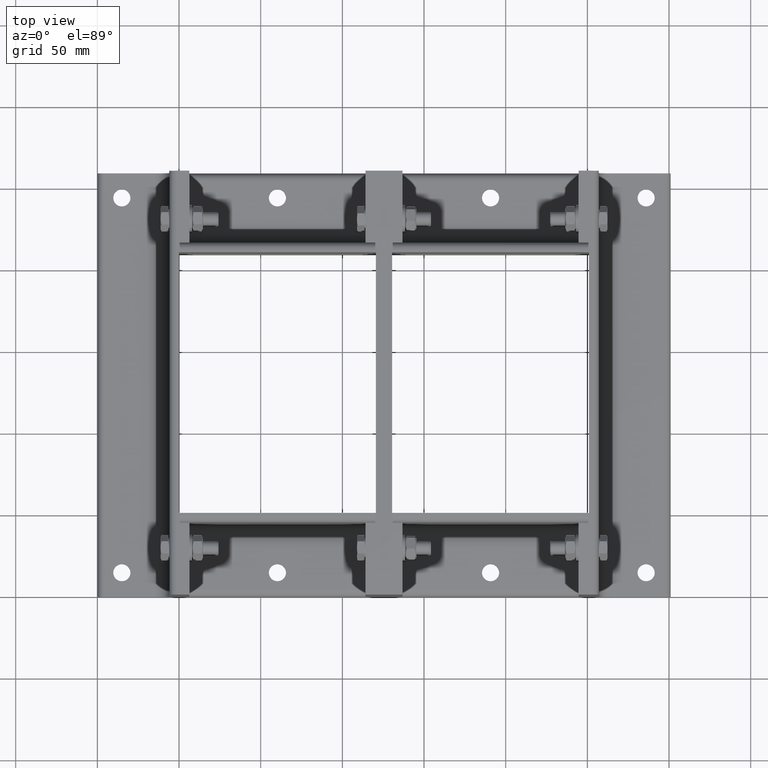
[diagram: clean part render]
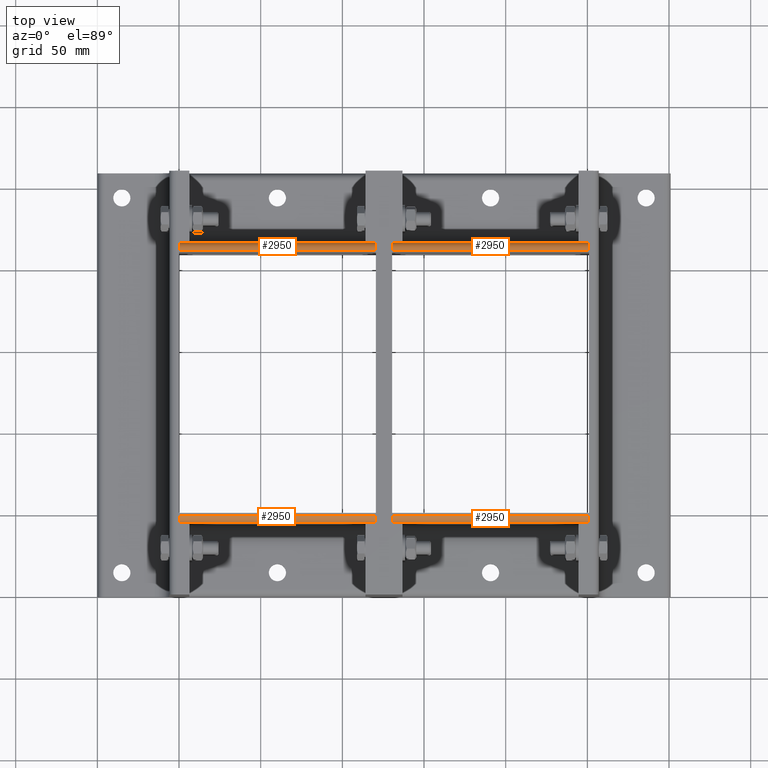
[diagram: same view with one multi-face feature highlighted, each face labeled with its STEP entity id]
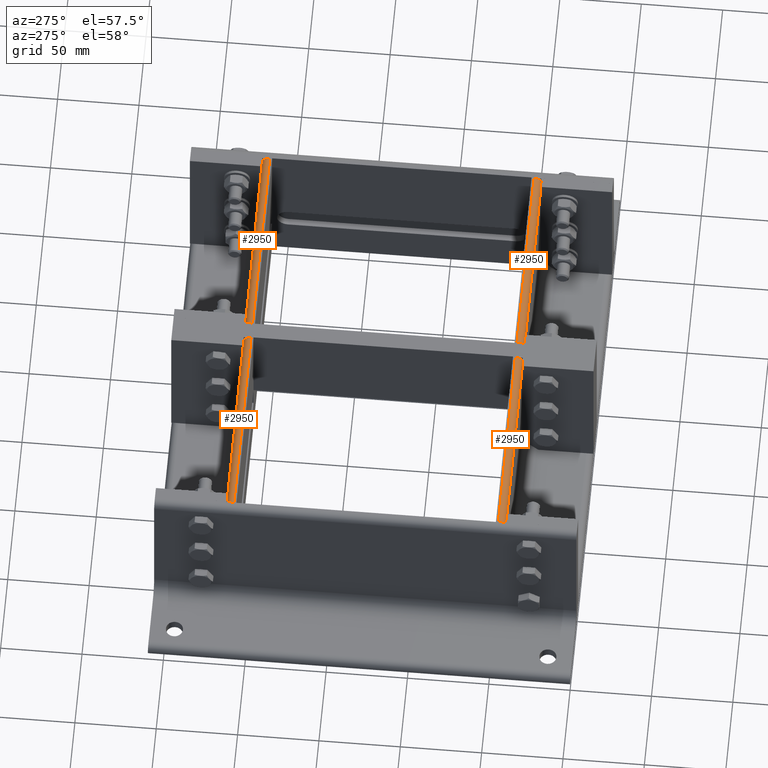
[diagram: same view with one multi-face feature highlighted, each face labeled with its STEP entity id]
A machine part, top view. The highlighted faces form ONE feature: a constant-radius fillet chain: 4 tangent blend faces with common blend radius 4.5 mm. The faces share edges in the B-rep.
A second angle (auxiliary view) of the same feature is appended — it is thin or edge-on in the first view.
Their STEP definitions:
[1] entity #2950 (Cylinder):
#2668=CARTESIAN_POINT('',(-4.499999999999978,119.80000000000001,93.999999999999986));
#2669=VERTEX_POINT('',#2668);
#2676=CARTESIAN_POINT('',(2.219856E-014,119.80000000000001,89.5));
#2677=VERTEX_POINT('',#2676);
#2678=CARTESIAN_POINT('',(-4.499999999999978,119.80000000000001,89.5));
#2679=DIRECTION('',(0.0,-1.0,0.0));
#2680=DIRECTION('',(0.707106781186548,0.0,0.707106781186547));
#2681=AXIS2_PLACEMENT_3D('',#2678,#2679,#2680);
#2682=CIRCLE('',#2681,4.5);
#2683=EDGE_CURVE('',#2677,#2669,#2682,.T.);
#2900=CARTESIAN_POINT('',(2.219856E-014,0.0,89.5));
#2901=VERTEX_POINT('',#2900);
#2908=CARTESIAN_POINT('',(-4.499999999999978,0.0,93.999999999999986));
#2909=VERTEX_POINT('',#2908);
#2910=CARTESIAN_POINT('',(-4.499999999999978,0.0,89.5));
#2911=DIRECTION('',(0.0,1.0,0.0));
#2912=DIRECTION('',(0.707106781186548,0.0,0.707106781186547));
#2913=AXIS2_PLACEMENT_3D('',#2910,#2911,#2912);
#2914=CIRCLE('',#2913,4.5);
#2915=EDGE_CURVE('',#2909,#2901,#2914,.T.);
#2929=CARTESIAN_POINT('',(-4.499999999999978,0.0,89.5));
#2930=DIRECTION('',(0.0,1.0,0.0));
#2931=DIRECTION('',(0.707106781186548,0.0,0.707106781186547));
#2932=AXIS2_PLACEMENT_3D('',#2929,#2930,#2931);
#2933=CYLINDRICAL_SURFACE('',#2932,4.5);
#2934=ORIENTED_EDGE('',*,*,#2683,.T.);
#2935=CARTESIAN_POINT('',(-4.499999999999978,119.80000000000001,93.999999999999986));
#2936=DIRECTION('',(0.0,-1.0,0.0));
#2937=VECTOR('',#2936,119.80000000000001);
#2938=LINE('',#2935,#2937);
#2939=EDGE_CURVE('',#2669,#2909,#2938,.T.);
#2940=ORIENTED_EDGE('',*,*,#2939,.T.);
#2941=ORIENTED_EDGE('',*,*,#2915,.T.);
#2942=CARTESIAN_POINT('',(2.220446E-014,0.0,89.5));
#2943=DIRECTION('',(0.0,1.0,0.0));
#2944=VECTOR('',#2943,119.80000000000001);
#2945=LINE('',#2942,#2944);
#2946=EDGE_CURVE('',#2901,#2677,#2945,.T.);
#2947=ORIENTED_EDGE('',*,*,#2946,.T.);
#2948=EDGE_LOOP('',(#2934,#2940,#2941,#2947));
#2949=FACE_OUTER_BOUND('',#2948,.T.);
#2950=ADVANCED_FACE('',(#2949),#2933,.T.);
[2] entity #2950 (Cylinder):
#2668=CARTESIAN_POINT('',(-4.499999999999978,119.80000000000001,93.999999999999986));
#2669=VERTEX_POINT('',#2668);
#2676=CARTESIAN_POINT('',(2.219856E-014,119.80000000000001,89.5));
#2677=VERTEX_POINT('',#2676);
#2678=CARTESIAN_POINT('',(-4.499999999999978,119.80000000000001,89.5));
#2679=DIRECTION('',(0.0,-1.0,0.0));
#2680=DIRECTION('',(0.707106781186548,0.0,0.707106781186547));
#2681=AXIS2_PLACEMENT_3D('',#2678,#2679,#2680);
#2682=CIRCLE('',#2681,4.5);
#2683=EDGE_CURVE('',#2677,#2669,#2682,.T.);
#2900=CARTESIAN_POINT('',(2.219856E-014,0.0,89.5));
#2901=VERTEX_POINT('',#2900);
#2908=CARTESIAN_POINT('',(-4.499999999999978,0.0,93.999999999999986));
#2909=VERTEX_POINT('',#2908);
#2910=CARTESIAN_POINT('',(-4.499999999999978,0.0,89.5));
#2911=DIRECTION('',(0.0,1.0,0.0));
#2912=DIRECTION('',(0.707106781186548,0.0,0.707106781186547));
#2913=AXIS2_PLACEMENT_3D('',#2910,#2911,#2912);
#2914=CIRCLE('',#2913,4.5);
#2915=EDGE_CURVE('',#2909,#2901,#2914,.T.);
#2929=CARTESIAN_POINT('',(-4.499999999999978,0.0,89.5));
#2930=DIRECTION('',(0.0,1.0,0.0));
#2931=DIRECTION('',(0.707106781186548,0.0,0.707106781186547));
#2932=AXIS2_PLACEMENT_3D('',#2929,#2930,#2931);
#2933=CYLINDRICAL_SURFACE('',#2932,4.5);
#2934=ORIENTED_EDGE('',*,*,#2683,.T.);
#2935=CARTESIAN_POINT('',(-4.499999999999978,119.80000000000001,93.999999999999986));
#2936=DIRECTION('',(0.0,-1.0,0.0));
#2937=VECTOR('',#2936,119.80000000000001);
#2938=LINE('',#2935,#2937);
#2939=EDGE_CURVE('',#2669,#2909,#2938,.T.);
#2940=ORIENTED_EDGE('',*,*,#2939,.T.);
#2941=ORIENTED_EDGE('',*,*,#2915,.T.);
#2942=CARTESIAN_POINT('',(2.220446E-014,0.0,89.5));
#2943=DIRECTION('',(0.0,1.0,0.0));
#2944=VECTOR('',#2943,119.80000000000001);
#2945=LINE('',#2942,#2944);
#2946=EDGE_CURVE('',#2901,#2677,#2945,.T.);
#2947=ORIENTED_EDGE('',*,*,#2946,.T.);
#2948=EDGE_LOOP('',(#2934,#2940,#2941,#2947));
#2949=FACE_OUTER_BOUND('',#2948,.T.);
#2950=ADVANCED_FACE('',(#2949),#2933,.T.);
[3] entity #2950 (Cylinder):
#2668=CARTESIAN_POINT('',(-4.499999999999978,119.80000000000001,93.999999999999986));
#2669=VERTEX_POINT('',#2668);
#2676=CARTESIAN_POINT('',(2.219856E-014,119.80000000000001,89.5));
#2677=VERTEX_POINT('',#2676);
#2678=CARTESIAN_POINT('',(-4.499999999999978,119.80000000000001,89.5));
#2679=DIRECTION('',(0.0,-1.0,0.0));
#2680=DIRECTION('',(0.707106781186548,0.0,0.707106781186547));
#2681=AXIS2_PLACEMENT_3D('',#2678,#2679,#2680);
#2682=CIRCLE('',#2681,4.5);
#2683=EDGE_CURVE('',#2677,#2669,#2682,.T.);
#2900=CARTESIAN_POINT('',(2.219856E-014,0.0,89.5));
#2901=VERTEX_POINT('',#2900);
#2908=CARTESIAN_POINT('',(-4.499999999999978,0.0,93.999999999999986));
#2909=VERTEX_POINT('',#2908);
#2910=CARTESIAN_POINT('',(-4.499999999999978,0.0,89.5));
#2911=DIRECTION('',(0.0,1.0,0.0));
#2912=DIRECTION('',(0.707106781186548,0.0,0.707106781186547));
#2913=AXIS2_PLACEMENT_3D('',#2910,#2911,#2912);
#2914=CIRCLE('',#2913,4.5);
#2915=EDGE_CURVE('',#2909,#2901,#2914,.T.);
#2929=CARTESIAN_POINT('',(-4.499999999999978,0.0,89.5));
#2930=DIRECTION('',(0.0,1.0,0.0));
#2931=DIRECTION('',(0.707106781186548,0.0,0.707106781186547));
#2932=AXIS2_PLACEMENT_3D('',#2929,#2930,#2931);
#2933=CYLINDRICAL_SURFACE('',#2932,4.5);
#2934=ORIENTED_EDGE('',*,*,#2683,.T.);
#2935=CARTESIAN_POINT('',(-4.499999999999978,119.80000000000001,93.999999999999986));
#2936=DIRECTION('',(0.0,-1.0,0.0));
#2937=VECTOR('',#2936,119.80000000000001);
#2938=LINE('',#2935,#2937);
#2939=EDGE_CURVE('',#2669,#2909,#2938,.T.);
#2940=ORIENTED_EDGE('',*,*,#2939,.T.);
#2941=ORIENTED_EDGE('',*,*,#2915,.T.);
#2942=CARTESIAN_POINT('',(2.220446E-014,0.0,89.5));
#2943=DIRECTION('',(0.0,1.0,0.0));
#2944=VECTOR('',#2943,119.80000000000001);
#2945=LINE('',#2942,#2944);
#2946=EDGE_CURVE('',#2901,#2677,#2945,.T.);
#2947=ORIENTED_EDGE('',*,*,#2946,.T.);
#2948=EDGE_LOOP('',(#2934,#2940,#2941,#2947));
#2949=FACE_OUTER_BOUND('',#2948,.T.);
#2950=ADVANCED_FACE('',(#2949),#2933,.T.);
[4] entity #2950 (Cylinder):
#2668=CARTESIAN_POINT('',(-4.499999999999978,119.80000000000001,93.999999999999986));
#2669=VERTEX_POINT('',#2668);
#2676=CARTESIAN_POINT('',(2.219856E-014,119.80000000000001,89.5));
#2677=VERTEX_POINT('',#2676);
#2678=CARTESIAN_POINT('',(-4.499999999999978,119.80000000000001,89.5));
#2679=DIRECTION('',(0.0,-1.0,0.0));
#2680=DIRECTION('',(0.707106781186548,0.0,0.707106781186547));
#2681=AXIS2_PLACEMENT_3D('',#2678,#2679,#2680);
#2682=CIRCLE('',#2681,4.5);
#2683=EDGE_CURVE('',#2677,#2669,#2682,.T.);
#2900=CARTESIAN_POINT('',(2.219856E-014,0.0,89.5));
#2901=VERTEX_POINT('',#2900);
#2908=CARTESIAN_POINT('',(-4.499999999999978,0.0,93.999999999999986));
#2909=VERTEX_POINT('',#2908);
#2910=CARTESIAN_POINT('',(-4.499999999999978,0.0,89.5));
#2911=DIRECTION('',(0.0,1.0,0.0));
#2912=DIRECTION('',(0.707106781186548,0.0,0.707106781186547));
#2913=AXIS2_PLACEMENT_3D('',#2910,#2911,#2912);
#2914=CIRCLE('',#2913,4.5);
#2915=EDGE_CURVE('',#2909,#2901,#2914,.T.);
#2929=CARTESIAN_POINT('',(-4.499999999999978,0.0,89.5));
#2930=DIRECTION('',(0.0,1.0,0.0));
#2931=DIRECTION('',(0.707106781186548,0.0,0.707106781186547));
#2932=AXIS2_PLACEMENT_3D('',#2929,#2930,#2931);
#2933=CYLINDRICAL_SURFACE('',#2932,4.5);
#2934=ORIENTED_EDGE('',*,*,#2683,.T.);
#2935=CARTESIAN_POINT('',(-4.499999999999978,119.80000000000001,93.999999999999986));
#2936=DIRECTION('',(0.0,-1.0,0.0));
#2937=VECTOR('',#2936,119.80000000000001);
#2938=LINE('',#2935,#2937);
#2939=EDGE_CURVE('',#2669,#2909,#2938,.T.);
#2940=ORIENTED_EDGE('',*,*,#2939,.T.);
#2941=ORIENTED_EDGE('',*,*,#2915,.T.);
#2942=CARTESIAN_POINT('',(2.220446E-014,0.0,89.5));
#2943=DIRECTION('',(0.0,1.0,0.0));
#2944=VECTOR('',#2943,119.80000000000001);
#2945=LINE('',#2942,#2944);
#2946=EDGE_CURVE('',#2901,#2677,#2945,.T.);
#2947=ORIENTED_EDGE('',*,*,#2946,.T.);
#2948=EDGE_LOOP('',(#2934,#2940,#2941,#2947));
#2949=FACE_OUTER_BOUND('',#2948,.T.);
#2950=ADVANCED_FACE('',(#2949),#2933,.T.);